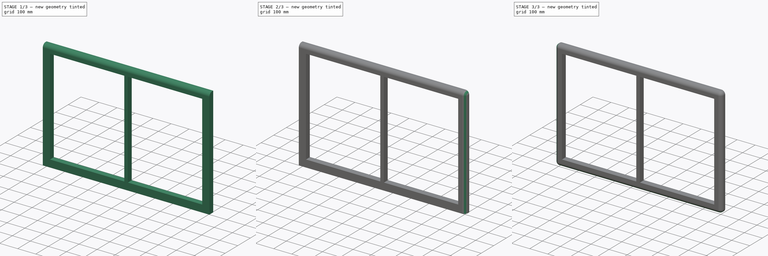
[diagram: build sequence overview — one tinted view per stage of 3, left to right]
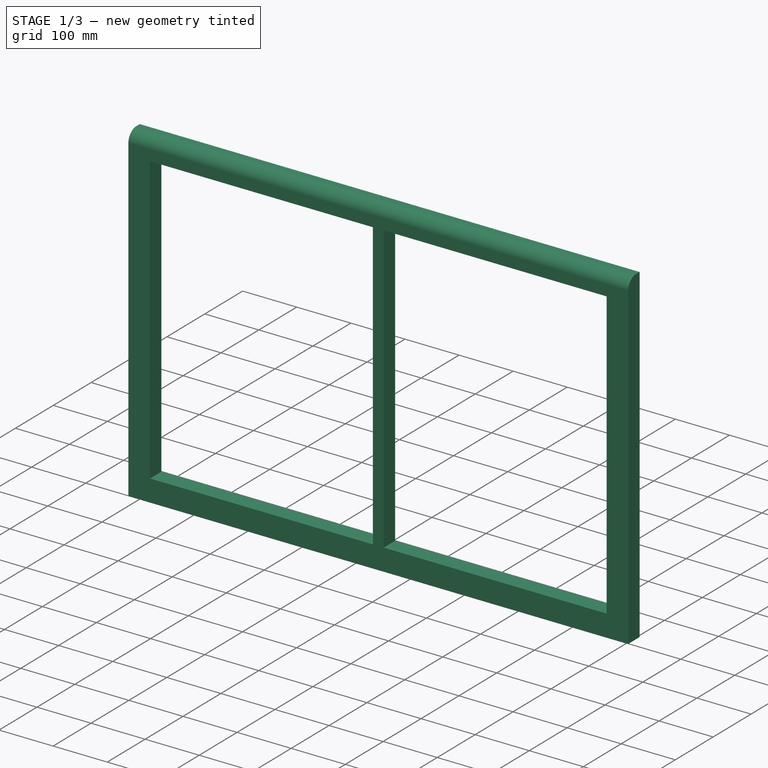
[diagram: stage 1 of 3 — iso view after this stage's code; geometry added in this stage tinted green]
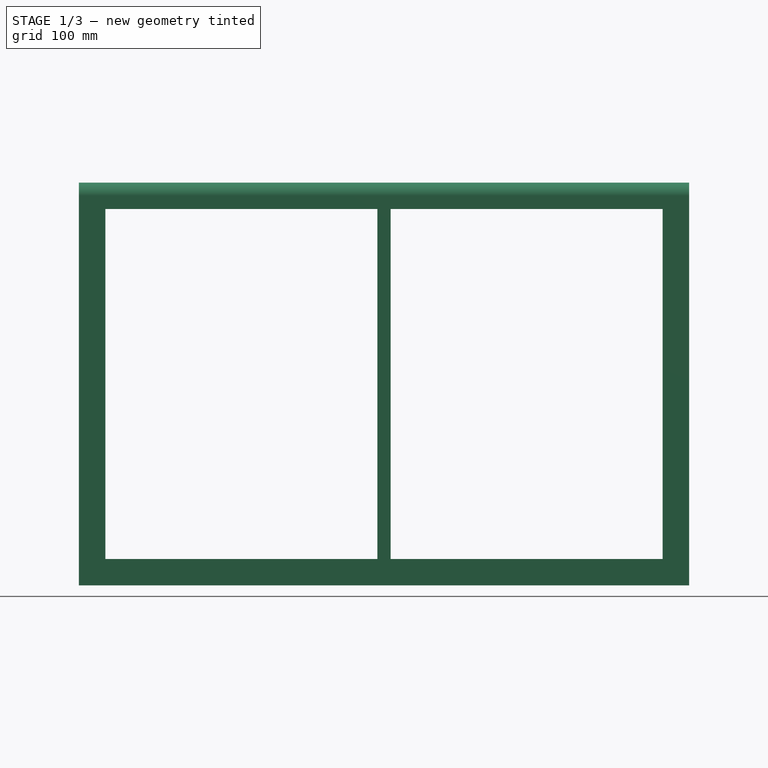
[diagram: stage 1 of 3 — front view after this stage's code; geometry added in this stage tinted green]
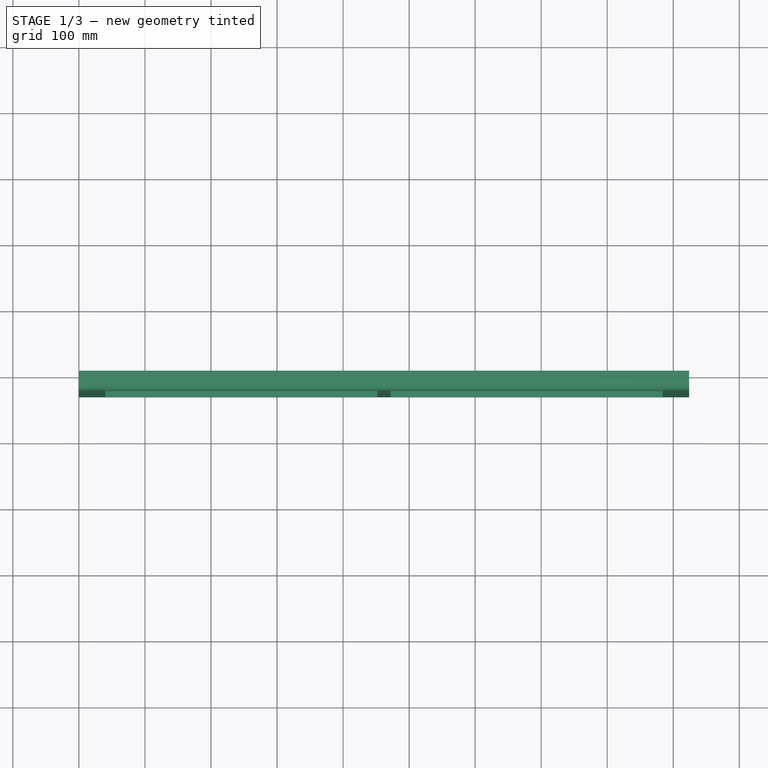
[diagram: stage 1 of 3 — top view after this stage's code; geometry added in this stage tinted green]
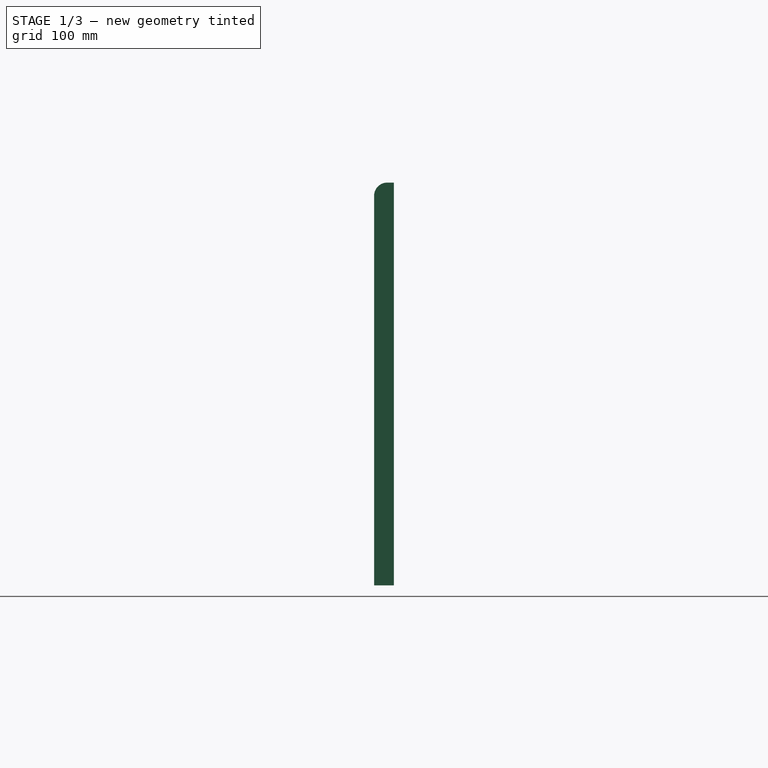
[diagram: stage 1 of 3 — right view after this stage's code; geometry added in this stage tinted green]
FCSTD DOCUMENT  (FreeCAD 0.14R3703 (Git))
Label: Face Frame 2
License: CC-BY 3.0
LicenseURL: http://creativecommons.org/licenses/by/3.0/
objects: PartDesign::Fillet×4, Sketcher::SketchObject×1, PartDesign::Pad×1, Part::Feature×1
note: 8 computed .brp shape members not serialized (recipe doc carries the construction recipe); baked Part::Feature solids carry a one-line shape summary decoded from their .brp

FEATURE [Sketcher::SketchObject] Sketch
  Placement = pos=(0,0,0) rot=(1,0,0;1.5708rad)
  sketch-geometry (19):
    g0: LineSegment StartX=0 StartY=0 StartZ=0 EndX=924 EndY=0 EndZ=0
    g1: LineSegment StartX=924 StartY=0 StartZ=0 EndX=924 EndY=610 EndZ=0
    g2: LineSegment StartX=924 StartY=610 StartZ=0 EndX=0 EndY=610 EndZ=0
    g3: LineSegment StartX=0 StartY=610 StartZ=0 EndX=0 EndY=0 EndZ=0
    g4: LineSegment StartX=40 StartY=570 StartZ=0 EndX=452 EndY=570 EndZ=0
    g5: LineSegment StartX=452 StartY=570 StartZ=0 EndX=452 EndY=40 EndZ=0
    g6: LineSegment StartX=452 StartY=40 StartZ=0 EndX=40 EndY=40 EndZ=0
    g7: LineSegment StartX=40 StartY=40 StartZ=0 EndX=40 EndY=570 EndZ=0
    g8: LineSegment StartX=472 StartY=570 StartZ=0 EndX=884 EndY=570 EndZ=0
    g9: LineSegment StartX=884 StartY=570 StartZ=0 EndX=884 EndY=40 EndZ=0
    g10: LineSegment StartX=884 StartY=40 StartZ=0 EndX=472 EndY=40 EndZ=0
    g11: LineSegment StartX=472 StartY=40 StartZ=0 EndX=472 EndY=570 EndZ=0
    g12: LineSegment [constr] StartX=452 StartY=440 StartZ=0 EndX=472 EndY=440 EndZ=0
    g13: LineSegment [constr] StartX=0 StartY=460 StartZ=0 EndX=40 EndY=460 EndZ=0
    g14: LineSegment [constr] StartX=884 StartY=465.147 StartZ=0 EndX=924 EndY=465.147 EndZ=0
    g15: LineSegment [constr] StartX=190 StartY=610 StartZ=0 EndX=190 EndY=570 EndZ=0
    g16: LineSegment [constr] StartX=182.373 StartY=40 StartZ=0 EndX=182.373 EndY=0 EndZ=0
    g17: LineSegment [constr] StartX=543.503 StartY=610 StartZ=0 EndX=543.503 EndY=570 EndZ=0
    g18: LineSegment [constr] StartX=506.653 StartY=40 StartZ=0 EndX=506.653 EndY=0 EndZ=0
  constraints (56):
    c: Coincident(g0,g1)
    c: Coincident(g1,g2)
    c: Coincident(g2,g3)
    c: Coincident(g3,g0)
    c: Horizontal(g0)
    c: Horizontal(g2)
    c: Vertical(g1)
    c: Vertical(g3)
    c: Coincident(g0,g-1)
    c: Coincident(g4,g5)
    c: Coincident(g5,g6)
    c: Coincident(g6,g7)
    c: Coincident(g7,g4)
    c: Horizontal(g4)
    c: Horizontal(g6)
    c: Vertical(g5)
    c: Vertical(g7)
    c: Coincident(g8,g9)
    c: Coincident(g9,g10)
    c: Coincident(g10,g11)
    c: Coincident(g11,g8)
    c: Horizontal(g8)
    c: Horizontal(g10)
    c: Vertical(g9)
    c: Vertical(g11)
    c: PointOnObject(g12,g5)
    c: PointOnObject(g12,g11)
    c: PointOnObject(g13,g3)
    c: Horizontal(g12)
    c: Horizontal(g13)
    c: DistanceX(g13) = 40
    c: PointOnObject(g13,g7)
    c: PointOnObject(g14,g9)
    c: PointOnObject(g14,g1)
    c: Horizontal(g14)
    c: DistanceX(g14) = 40
    c: PointOnObject(g15,g2)
    c: PointOnObject(g15,g4)
    c: Vertical(g15)
    c: PointOnObject(g16,g6)
    c: PointOnObject(g16,g0)
    c: Vertical(g16)
    c: DistanceY(g16) = -40
    c: DistanceY(g15) = -40
    c: PointOnObject(g17,g8)
    c: Vertical(g17)
    c: PointOnObject(g18,g10)
    c: PointOnObject(g18,g0)
    c: Vertical(g18)
    c: DistanceY(g18) = -40
    c: DistanceY(g17) = -40
    c: PointOnObject(g17,g2)
    c: Equal(g8,g4)
    c: DistanceX(g12) = 20
    c: DistanceX(g4) = 412
    c: DistanceY(g7) = 530
FEATURE [PartDesign::Pad] Pad
  Length = 30
  Length2 = 100
  Placement = pos=(0,0,0) rot=(1,0,0;1.5708rad)
  Sketch = -> Sketch
  Type = 0
FEATURE [PartDesign::Fillet] Fillet
  Base = -> Pad [Edge10]
  Placement = pos=(0,0,0) rot=(1,0,0;1.5708rad)
  Radius = 20
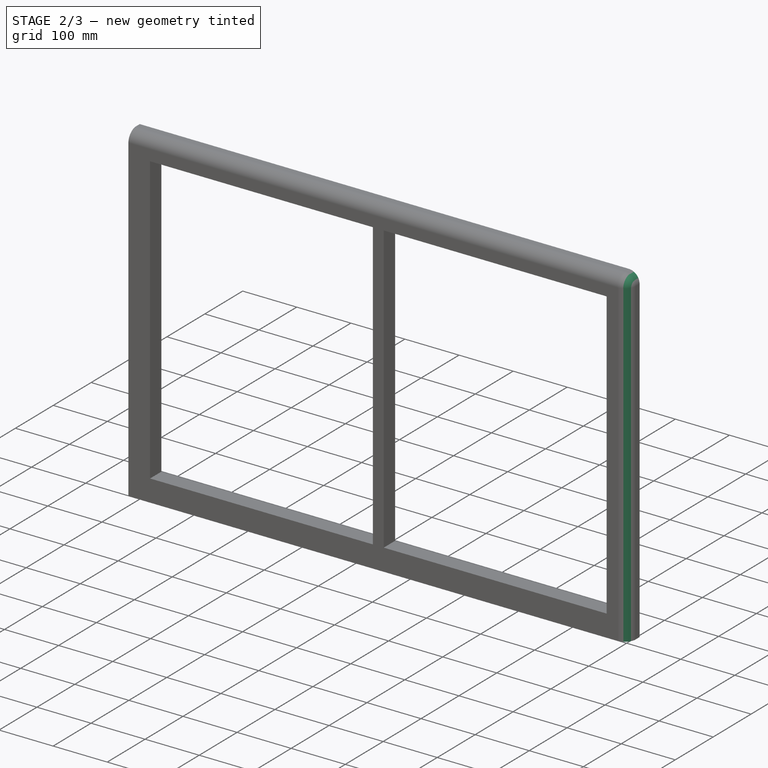
[diagram: stage 2 of 3 — iso view after this stage's code; geometry added in this stage tinted green]
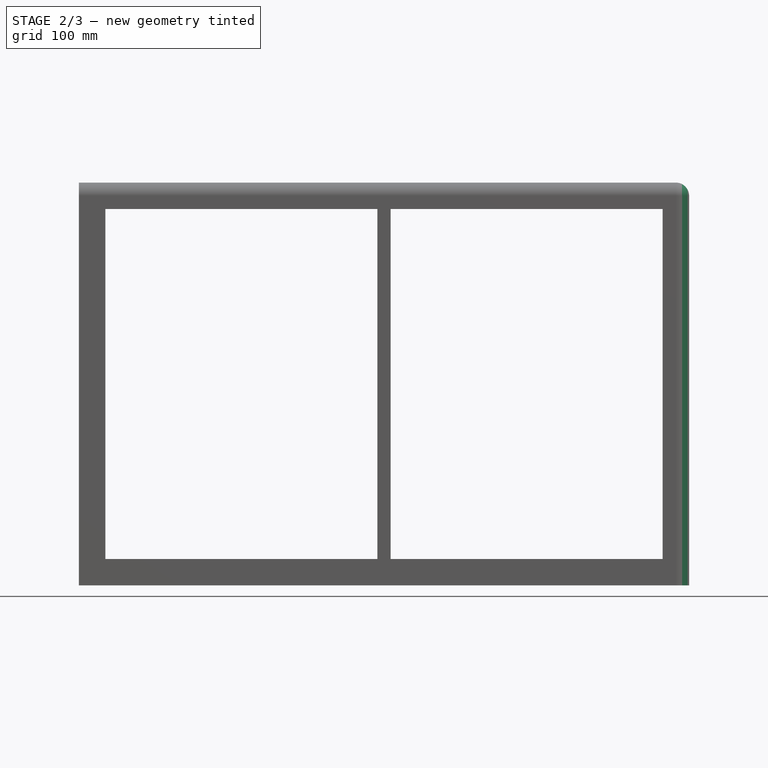
[diagram: stage 2 of 3 — front view after this stage's code; geometry added in this stage tinted green]
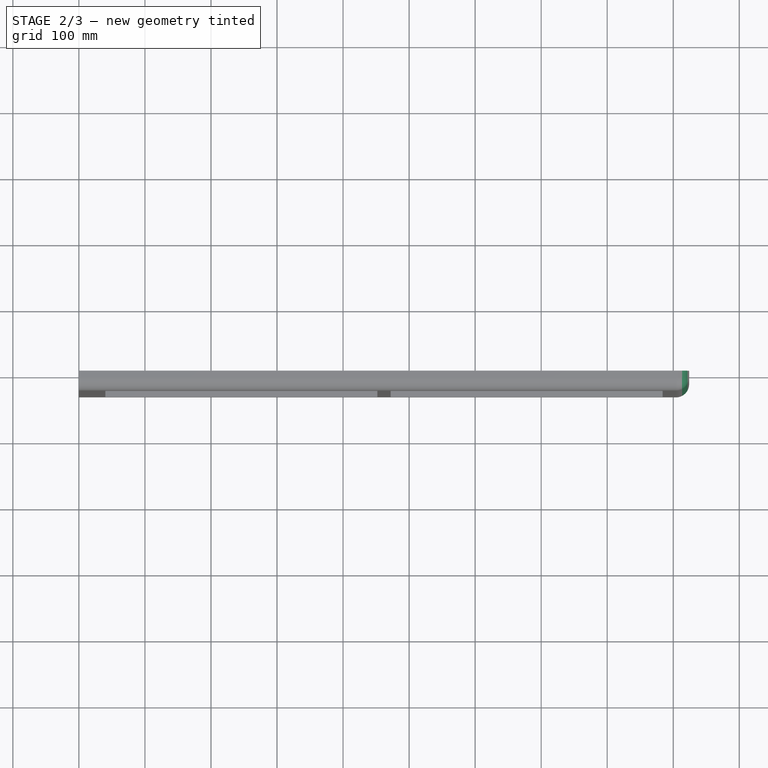
[diagram: stage 2 of 3 — top view after this stage's code; geometry added in this stage tinted green]
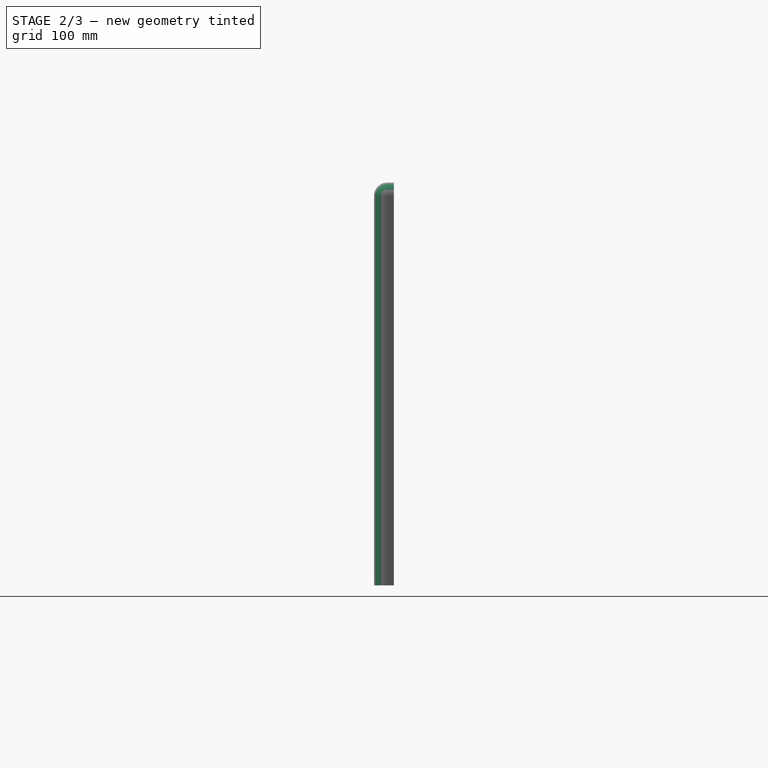
[diagram: stage 2 of 3 — right view after this stage's code; geometry added in this stage tinted green]
FEATURE [PartDesign::Fillet] Fillet001
  Base = -> Fillet [Edge4]
  Placement = pos=(0,0,0) rot=(1,0,0;1.5708rad)
  Radius = 20
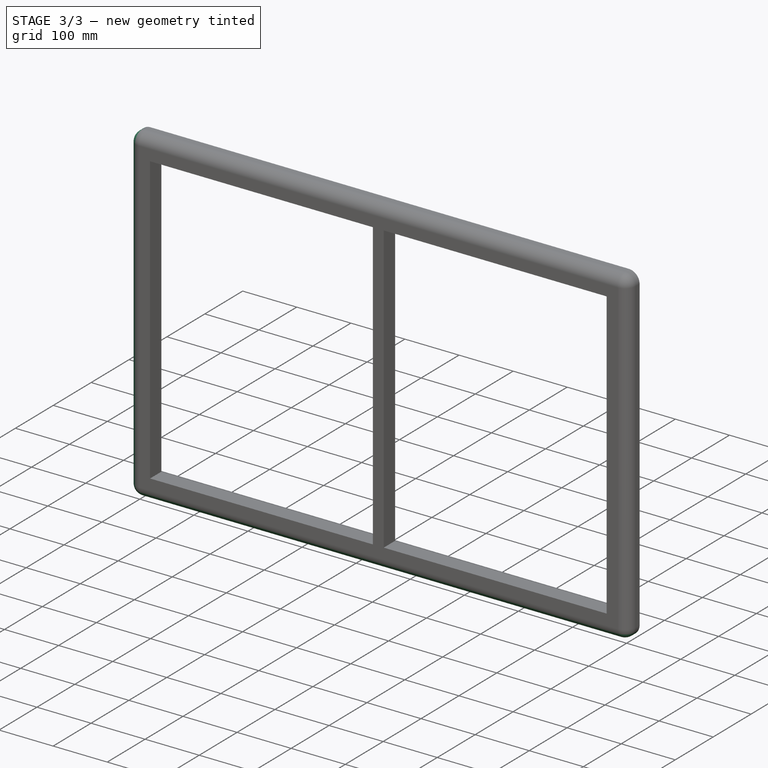
[diagram: stage 3 of 3 — iso view after this stage's code; geometry added in this stage tinted green]
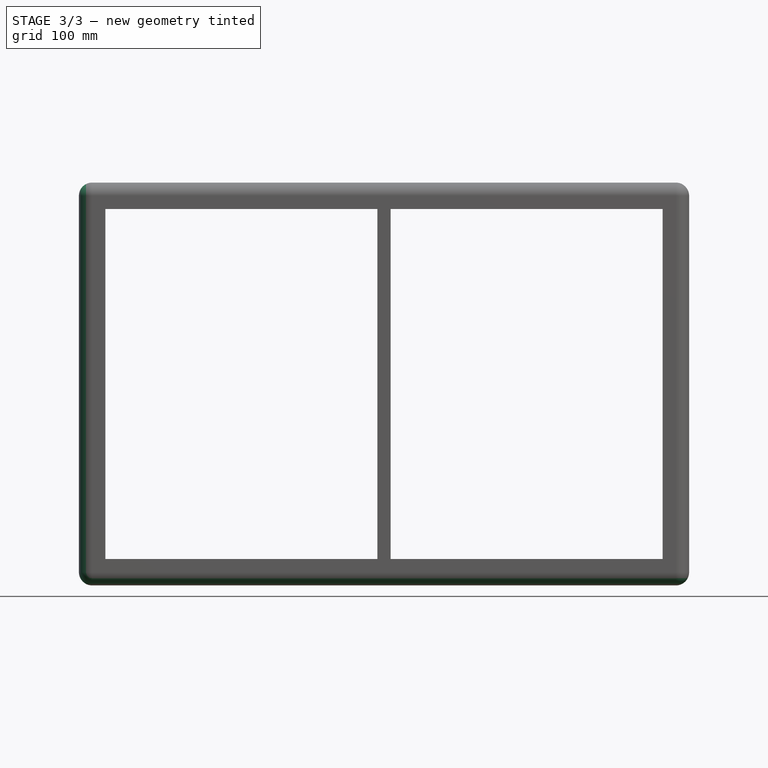
[diagram: stage 3 of 3 — front view after this stage's code; geometry added in this stage tinted green]
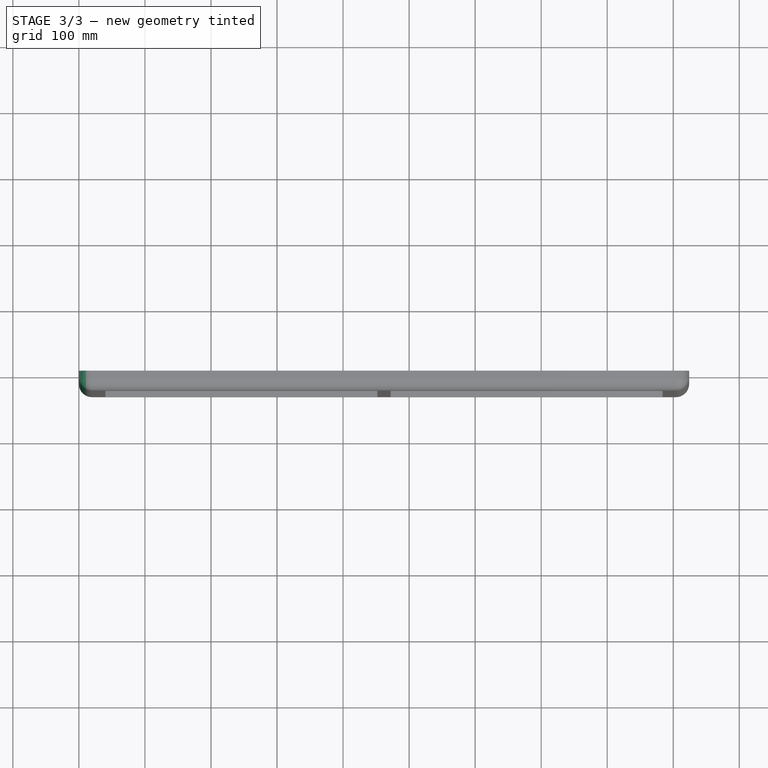
[diagram: stage 3 of 3 — top view after this stage's code; geometry added in this stage tinted green]
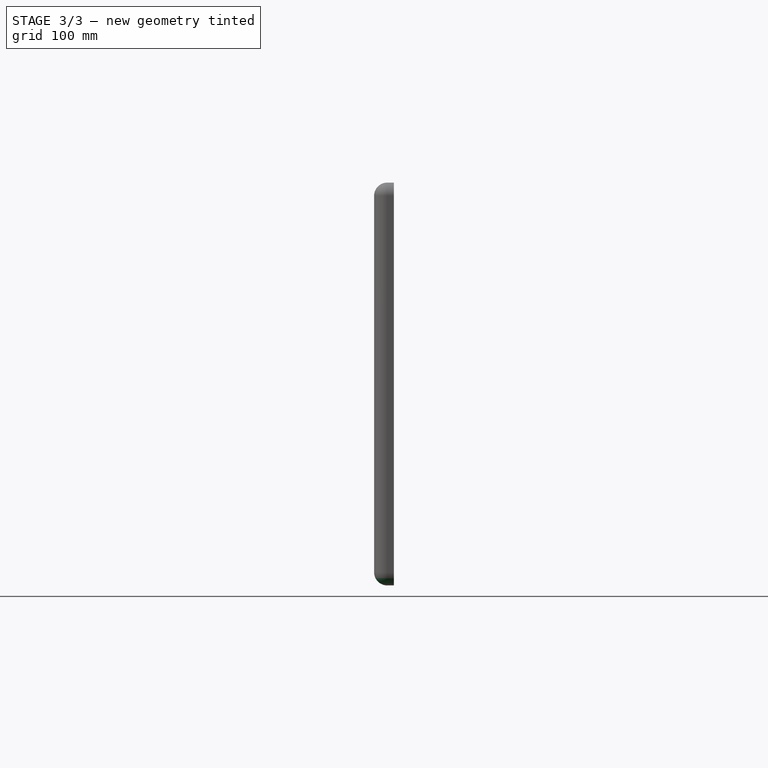
[diagram: stage 3 of 3 — right view after this stage's code; geometry added in this stage tinted green]
FEATURE [PartDesign::Fillet] Fillet002
  Base = -> Fillet001 [Edge20]
  Placement = pos=(0,0,0) rot=(1,0,0;1.5708rad)
  Radius = 20
FEATURE [PartDesign::Fillet] Fillet003
  Base = -> Fillet002 [Edge29]
  Placement = pos=(0,0,0) rot=(1,0,0;1.5708rad)
  Radius = 20
FEATURE [Part::Feature] Fillet003001  label="Fillet004"
  Placement = pos=(0,0,0) rot=(1,0,0;1.5708rad)
  shape: bbox 924 x 30 x 610 mm, 26 faces (baked)
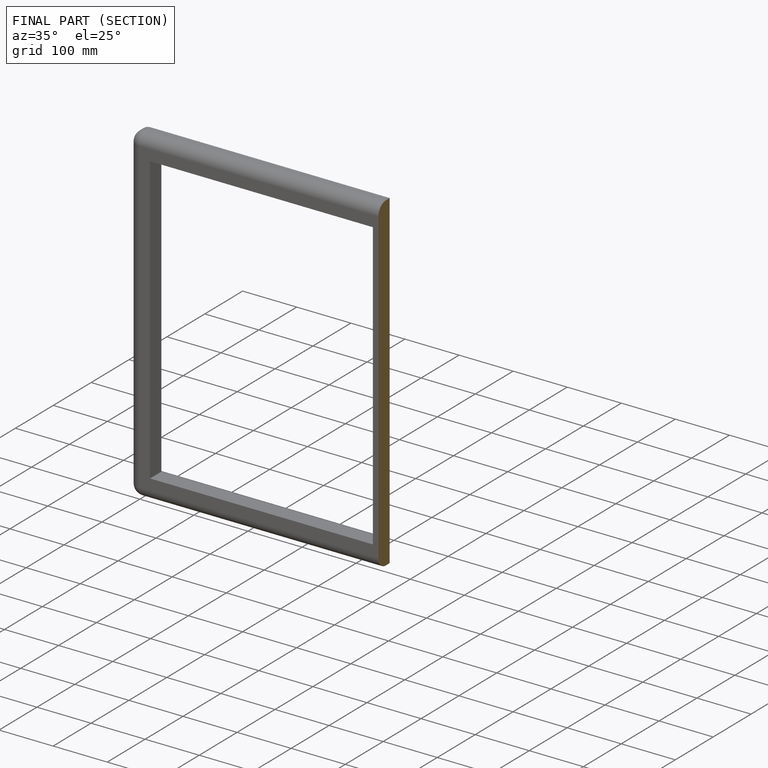
[diagram: finished part — half-section view (interior)]
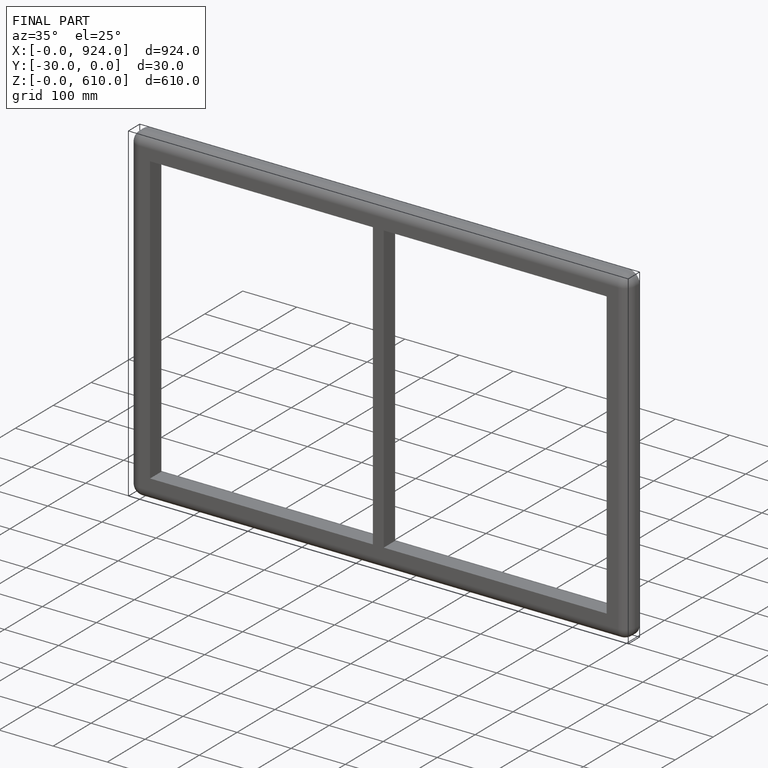
[diagram: finished part — iso view with bounding-box wireframe]
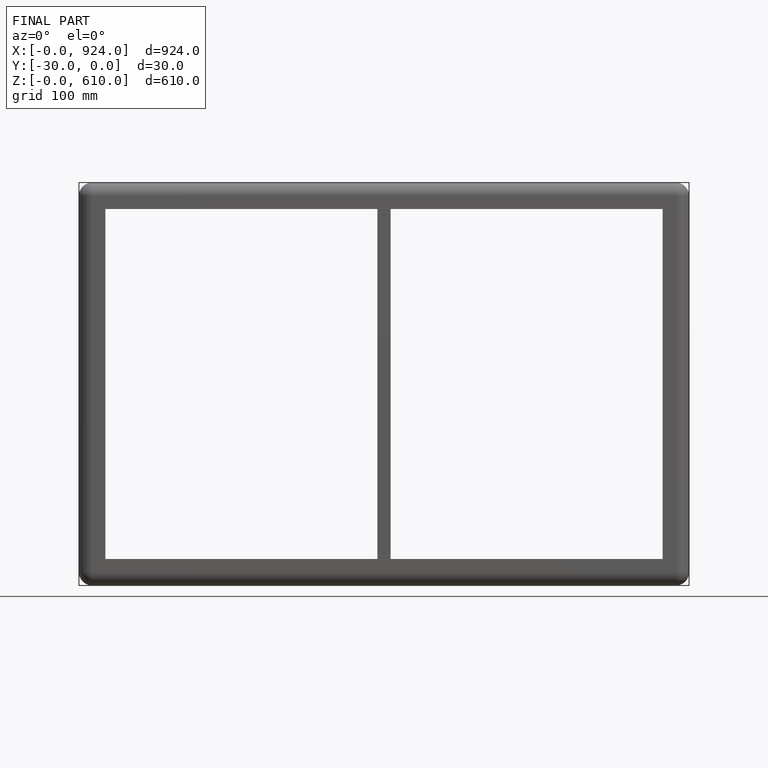
[diagram: finished part — front view with bounding-box wireframe]
